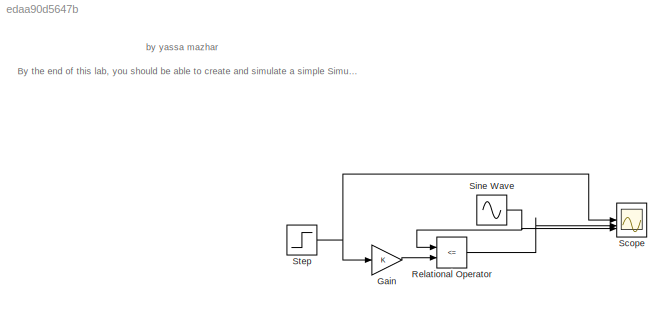
MODEL slx_edaa90d5647b
KIND model
CONFIG AbsTol = auto
CONFIG EnableMultiTasking = off
CONFIG FixedStep = auto
CONFIG MaxStep = 1e-3
CONFIG MinStep = auto
CONFIG RelTol = 1e-3
CONFIG SampleTimeConstraint = Unconstrained
CONFIG SolverName = VariableStepAuto
CONFIG StartTime = 0.0
CONFIG StopTime = 10.0
BLOCK [Gain] Gain
BLOCK [RelationalOperator] Relational Operator
  InputSameDT = off
  Operator = <=
  OutDataTypeStr = boolean
  RndMeth = Simplest
BLOCK [Scope] Scope
  Floating = off
  NumInputPorts = 3
  ScopeSpecificationString = Simulink.scopes.TimeScopeBlockCfg('CurrentConfiguration', extmgr.ConfigurationSet(extmgr.Configuration('Core','General UI',true),extmgr.Configuration('Core','Source UI',true),extmgr.Configuration('Sources','WiredSimulink',true),extmgr.Configuration('Visuals','Time Domain',true,'SerializedDisplays',{struct('MinYLimReal','-0.125','MaxYLimReal','1.125','YLabelReal','','MinYLimMag','0.00000','MaxYLimM...<+2699ch>
BLOCK [Sin] Sine Wave
  Frequency = 2*pi
  SampleTime = 0
BLOCK [Step] Step
  SampleTime = 0
  Time = 2
ANNOTATION (root): B y the end of this lab, you should be able to create and simulate a simple Simulink model, understand basic Simulink blocks, and connect them to build a functional system.
ANNOTATION (root): by yassa mazhar
LINE Gain:1 -> Relational Operator:2
LINE Relational Operator:1 -> Scope:2
NET Sine Wave:1 -> Relational Operator:1, Scope:3
NET Step:1 -> Gain:1, Scope:1
note: NET lines group one-source signal fan-out (src -> all destinations, sorted); 1:1 wires keep LINE
